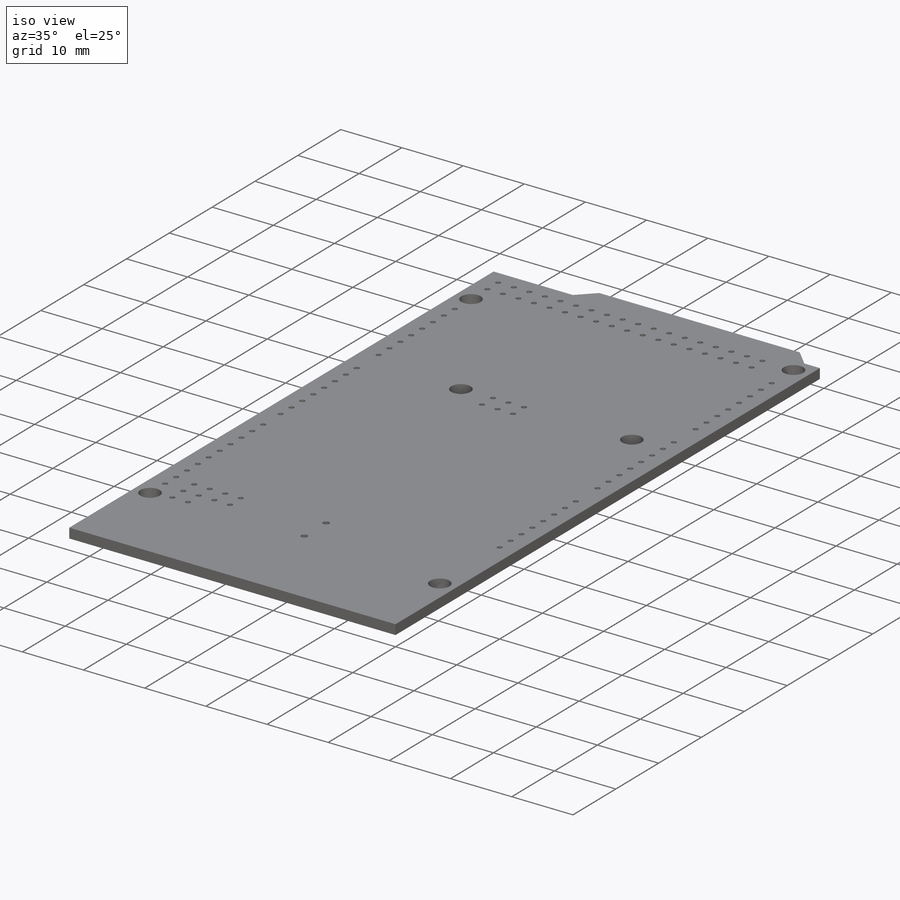
[diagram: iso view]
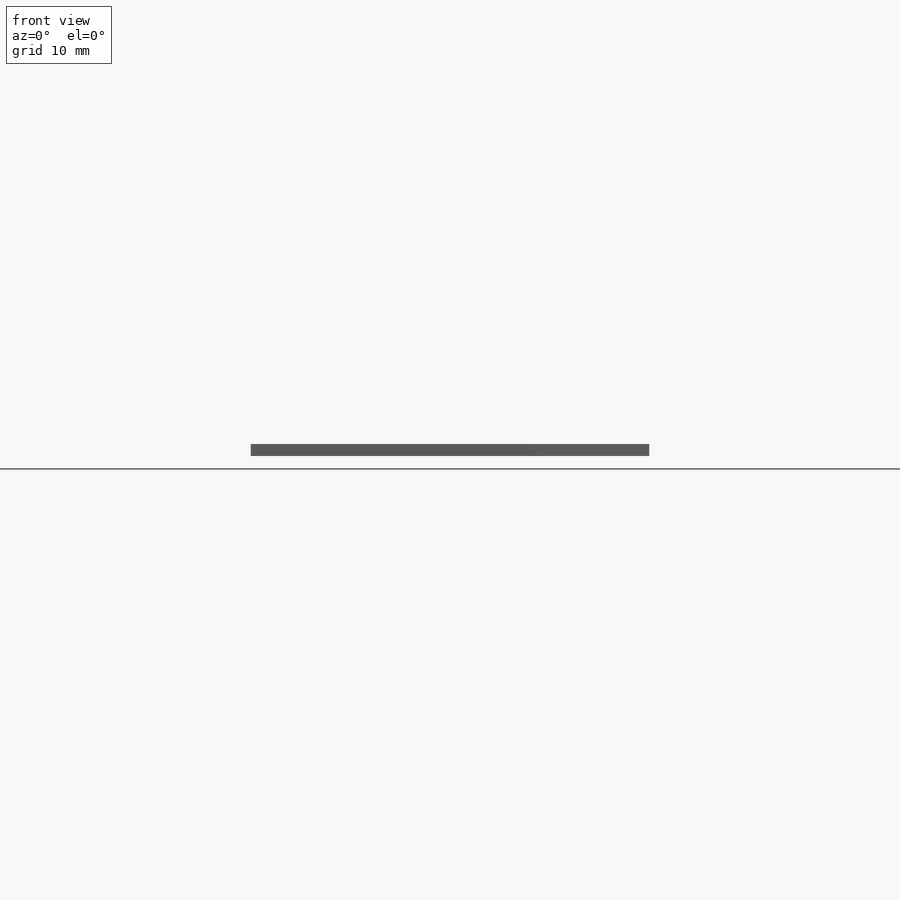
[diagram: front view]
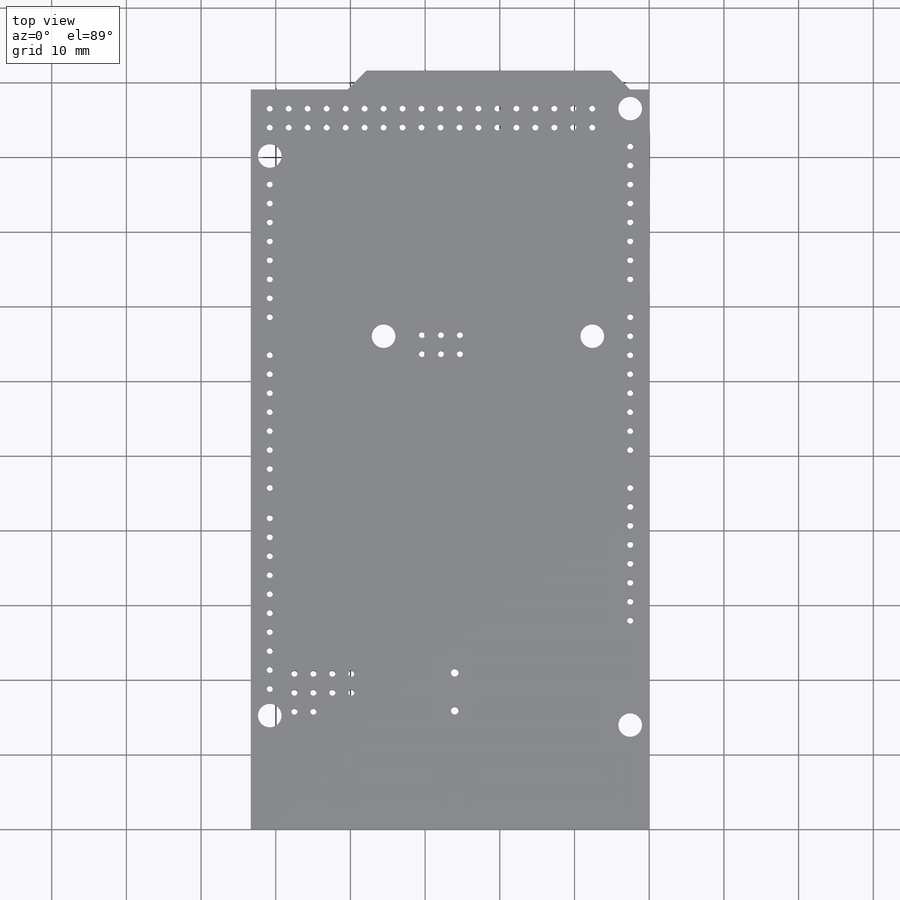
[diagram: top view]
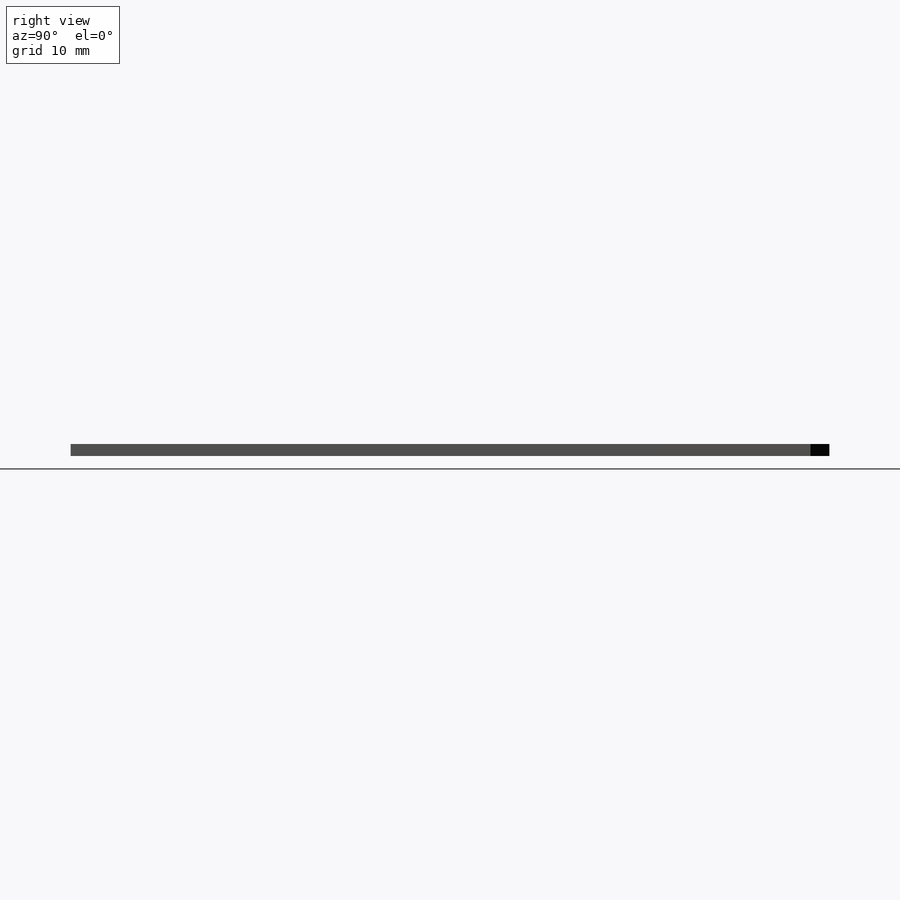
[diagram: right view]
SOLIDWORKS PART (.sldprt)
format: sldprt  version: not decoded by parser v0  size: 621,568 bytes
history: native  units: mm
features: sketch x7, cut_extrude x6, pattern_linear x4, material x1, extrude x1 (+11 scaffold rows collapsed)
feature tree (30):
  scaffold x11  (default folders/planes/origin — collapsed)
  material  "E-Glass Fiber"
  sketch  "Sketch1"  dims[c1.D8=3.175mm c1.D16=0.8mm c1.D1=101.6mm c1.D2=53.34mm c1.D3=99.06mm c1.D4=2.54mm c1.D5=5.08mm c1.D6=~3.592102mm c2.D6=45.0deg c3.D6=~4.737352mm c4.D6=45.0deg c4.D7=40.386mm c4.D5=2.54mm c5.D5=45.0deg c5.D9=66.04mm c5.D10=35.56mm c5.D11=7.62mm c5.D12=13.97mm c5.D13=2.54mm c5.D14=15.24mm c5.D15=50.8mm c5.D17=~22.744085mm c5.D16=96.52mm c6.D17=90.17mm]
  extrude  "Boss-Extrude1"  Depth=1.6mm
  sketch  "Sketch2"  dims[D1=0.8mm D2=2.54mm D3=27.94mm]
  cut_extrude  "Cut-Extrude1"  Depth=1.65mm
  sketch  "Sketch3"  dims[D2=0.8mm D1=50.8mm D3=18.796mm]
  cut_extrude  "Cut-Extrude2"  Depth=1.65mm
  pattern_linear  "LPattern1"  Count1=26 Count2=1 Spacing1=2.54mm Spacing2=10mm
  sketch  "Sketch4"  dims[D3=0.8mm D1=45.72mm D2=50.8mm]
  cut_extrude  "Cut-Extrude3"  Depth=1.65mm
  pattern_linear  "LPattern2"  Count1=10 Count2=1 Spacing1=2.54mm Spacing2=10mm
  pattern_linear  "LPattern3"  Count1=17 Count2=1 Spacing1=2.54mm Spacing2=10mm
  sketch  "Sketch5"  dims[D4=0.8mm D14=1.0mm D1=2.54mm D2=2.54mm D3=2.54mm D5=63.64mm D6=30.43mm D7=2.54mm D8=2.54mm D9=2.54mm D10=2.54mm D11=2.54mm D12=47.498mm D13=15.748mm D15=5.08mm D16=15.875mm D17=26.035mm]
  cut_extrude  "Cut-Extrude4"  Depth=10mm
  sketch  "Sketch6"  dims[D1=0.8mm D2=7.62mm D3=12.573mm D4=29.845mm D6=2.54mm D5=14.0]
  cut_extrude  "Cut-Extrude5"  Depth=10mm
  sketch  "Sketch7"  dims[D1=0.8mm D2=2.54mm D3=96.52mm D4=50.8mm]
  cut_extrude  "Cut-Extrude6"  Depth=10mm
  pattern_linear  "LPattern4"  Count1=18 Count2=1 Spacing1=2.54mm Spacing2=10mm
decode coverage: 18 of 18 modeling features carry decoded parameters
note: ~ marks probable driven/reference dimensions
note: suppression state not decoded; provenance and decode notes live in map.json
